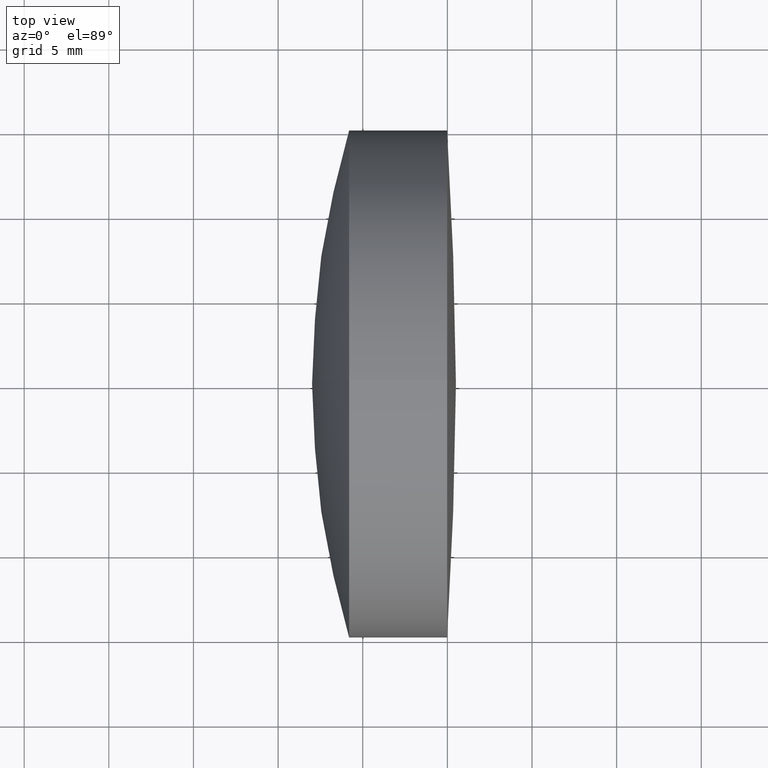
[diagram: clean part render]
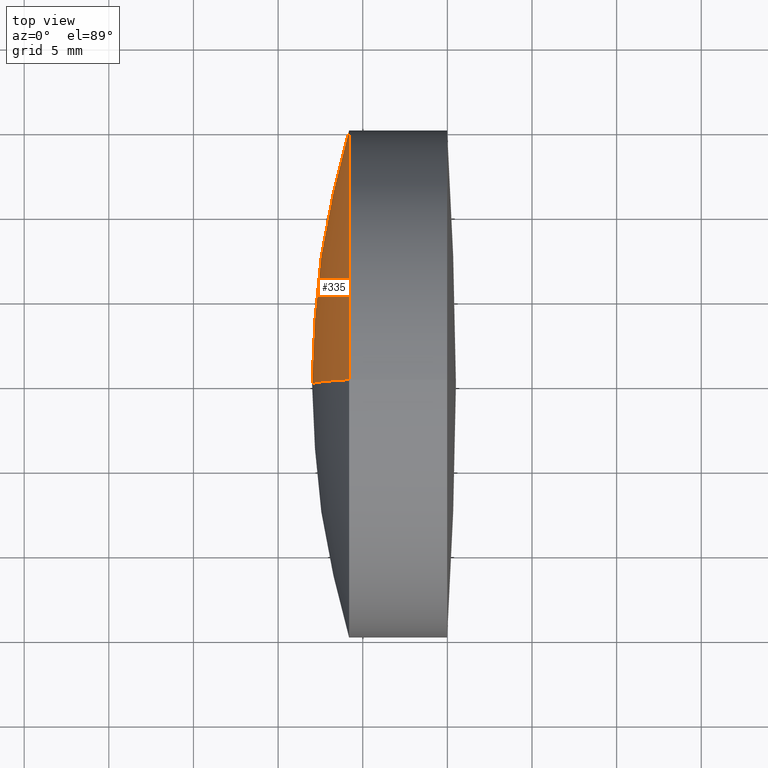
[diagram: same view with one face highlighted and labeled with its STEP entity id]
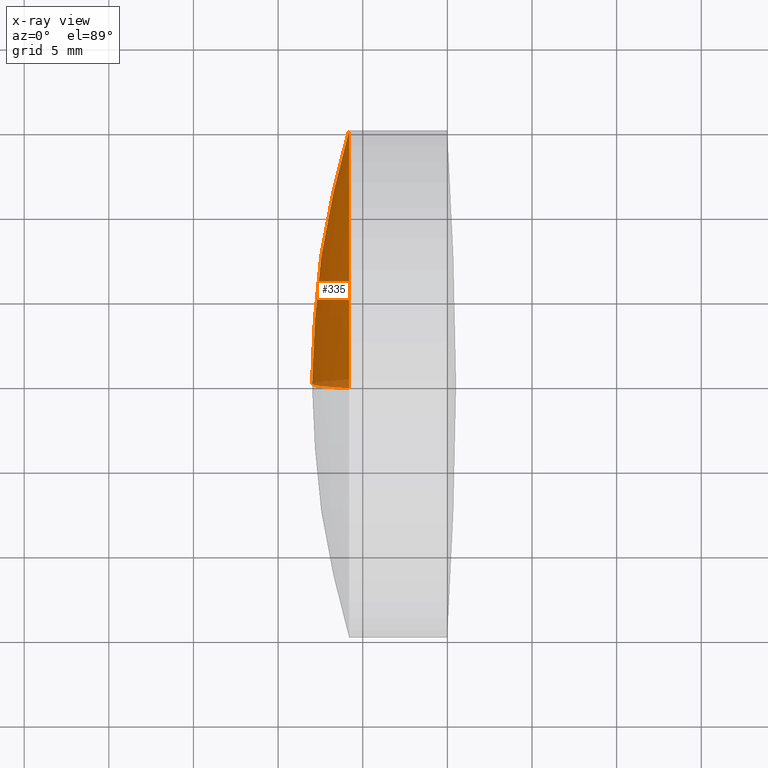
[diagram: x-ray of the same camera — body ghosted, the highlighted face saturated]
A machine part, top view. The second image highlights one B-rep face of the part: STEP entity #335.
The next image is the same camera in x-ray: the body ghosted, the highlighted face saturated — about 3% of this face is hidden behind the body in this view.
In plain terms, the highlighted spherical surface has radius 52.5 mm.
Its self-contained STEP definition (entity closure, byte-faithful):
#26 = DIRECTION ( 'NONE',  ( 0.0000000000000000000, 1.000000000000000000, 0.0000000000000000000 ) ) ;
#48 = DIRECTION ( 'NONE',  ( 0.0000000000000000000, -1.000000000000000000, 0.0000000000000000000 ) ) ;
#62 = SPHERICAL_SURFACE ( 'NONE', #251, 52.50000000000002100 ) ;
#69 = CARTESIAN_POINT ( 'NONE',  ( 527.0069652250824700, 0.0000000000000000000, -4.754858325981071400E-013 ) ) ;
#72 = VERTEX_POINT ( 'NONE', #69 ) ;
#74 = DIRECTION ( 'NONE',  ( 0.0000000000000000000, 0.0000000000000000000, -1.000000000000000000 ) ) ;
#79 = ORIENTED_EDGE ( 'NONE', *, *, #233, .F. ) ;
#94 = CIRCLE ( 'NONE', #217, 14.99999999999961500 ) ;
#143 = DIRECTION ( 'NONE',  ( -1.000000000000000000, -0.0000000000000000000, -0.0000000000000000000 ) ) ;
#146 = CIRCLE ( 'NONE', #347, 52.50000000000002100 ) ;
#159 = CARTESIAN_POINT ( 'NONE',  ( 579.5069652250824700, 0.0000000000000000000, -4.787005304458688400E-013 ) ) ;
#163 = CARTESIAN_POINT ( 'NONE',  ( 579.5069652250824700, 0.0000000000000000000, -4.787005304458688400E-013 ) ) ;
#164 = DIRECTION ( 'NONE',  ( 0.0000000000000000000, -1.224646799147353200E-016, 1.000000000000000000 ) ) ;
#167 = EDGE_CURVE ( 'NONE', #274, #210, #94, .T. ) ;
#171 = CARTESIAN_POINT ( 'NONE',  ( 529.1954357313371700, 0.0000000000000000000, 0.0000000000000000000 ) ) ;
#190 = DIRECTION ( 'NONE',  ( -0.0000000000000000000, 1.000000000000000000, 1.224646799147353200E-016 ) ) ;
#210 = VERTEX_POINT ( 'NONE', #285 ) ;
#211 = CARTESIAN_POINT ( 'NONE',  ( 579.5069652250824700, 0.0000000000000000000, -4.787005304458688400E-013 ) ) ;
#215 = EDGE_CURVE ( 'NONE', #210, #72, #307, .T. ) ;
#217 = AXIS2_PLACEMENT_3D ( 'NONE', #171, #143, #265 ) ;
#221 = FACE_OUTER_BOUND ( 'NONE', #314, .T. ) ;
#233 = EDGE_CURVE ( 'NONE', #274, #72, #146, .T. ) ;
#251 = AXIS2_PLACEMENT_3D ( 'NONE', #159, #26, #304 ) ;
#265 = DIRECTION ( 'NONE',  ( 0.0000000000000000000, 0.0000000000000000000, 1.000000000000000000 ) ) ;
#274 = VERTEX_POINT ( 'NONE', #299 ) ;
#285 = CARTESIAN_POINT ( 'NONE',  ( 529.1954357313371700, 1.836970198720976300E-015, -15.00000000000004400 ) ) ;
#295 = ORIENTED_EDGE ( 'NONE', *, *, #215, .T. ) ;
#299 = CARTESIAN_POINT ( 'NONE',  ( 529.1954357313371700, 0.0000000000000000000, 14.99999999999956700 ) ) ;
#304 = DIRECTION ( 'NONE',  ( 0.0000000000000000000, 0.0000000000000000000, 1.000000000000000000 ) ) ;
#307 = CIRCLE ( 'NONE', #310, 52.50000000000002100 ) ;
#310 = AXIS2_PLACEMENT_3D ( 'NONE', #211, #190, #164 ) ;
#314 = EDGE_LOOP ( 'NONE', ( #329, #295, #79 ) ) ;
#329 = ORIENTED_EDGE ( 'NONE', *, *, #167, .T. ) ;
#335 = ADVANCED_FACE ( 'NONE', ( #221 ), #62, .T. ) ;
#347 = AXIS2_PLACEMENT_3D ( 'NONE', #163, #48, #74 ) ;